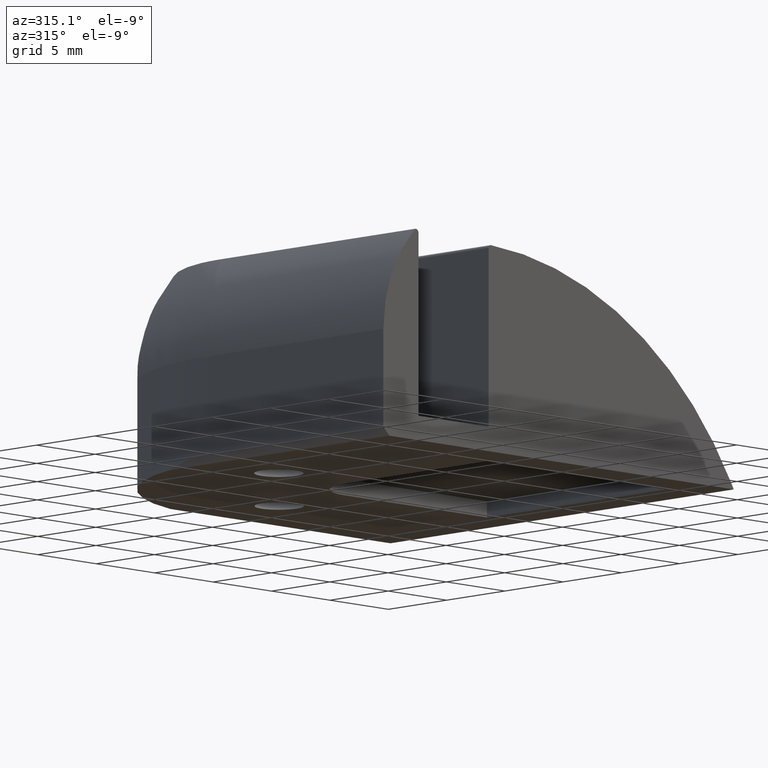
[diagram: clean part render]
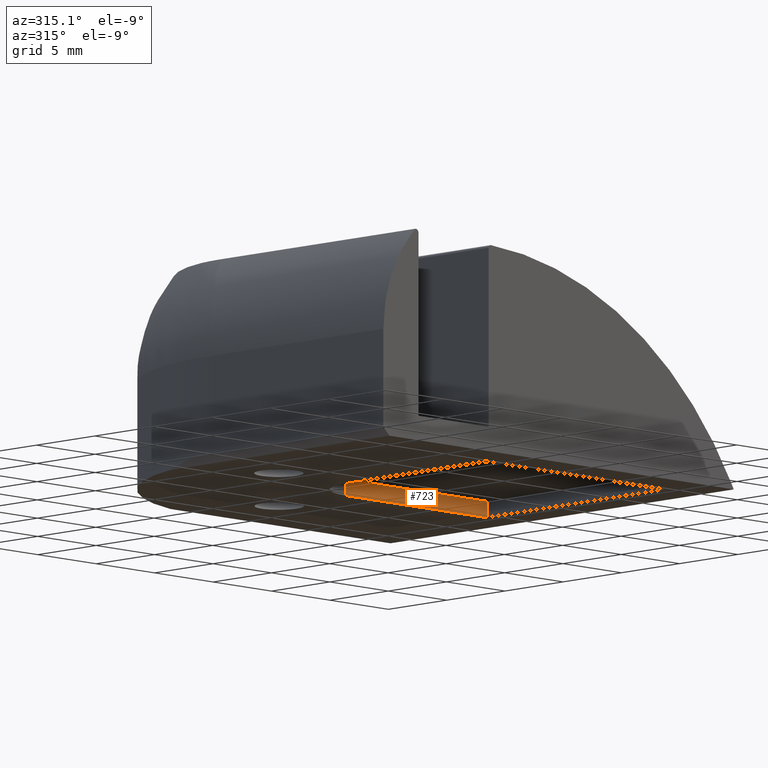
[diagram: same view with one face highlighted and labeled with its STEP entity id]
A machine part, auxiliary view. The second image highlights one B-rep face of the part: STEP entity #723.
In plain terms, the highlighted planar face has unit normal (0, -1, 0).
Its self-contained STEP definition (entity closure, byte-faithful):
#560=CARTESIAN_POINT('',(-14.979079826508496,18.603077244039696,-0.303077244039970));
#561=VERTEX_POINT('',#560);
#562=CARTESIAN_POINT('',(-2.879079826508473,18.603077244039696,-0.303077244039970));
#563=VERTEX_POINT('',#562);
#564=CARTESIAN_POINT('',(-14.979079826508496,18.603077244039696,-0.303077244039970));
#565=DIRECTION('',(1.0,0.0,0.0));
#566=VECTOR('',#565,12.100000000000023);
#567=LINE('',#564,#566);
#568=EDGE_CURVE('',#561,#563,#567,.T.);
#682=CARTESIAN_POINT('',(-14.979079826508496,18.603077244039696,0.696922755960030));
#683=VERTEX_POINT('',#682);
#684=CARTESIAN_POINT('',(-14.979079826508496,18.603077244039696,-0.303077244039970));
#685=DIRECTION('',(0.0,0.0,1.0));
#686=VECTOR('',#685,1.0);
#687=LINE('',#684,#686);
#688=EDGE_CURVE('',#561,#683,#687,.T.);
#700=CARTESIAN_POINT('',(-14.979079826508496,18.603077244039696,-0.303077244039970));
#701=DIRECTION('',(0.0,-1.0,0.0));
#702=DIRECTION('',(1.0,0.0,0.0));
#703=AXIS2_PLACEMENT_3D('',#700,#701,#702);
#704=PLANE('',#703);
#705=ORIENTED_EDGE('',*,*,#688,.F.);
#706=ORIENTED_EDGE('',*,*,#568,.T.);
#707=CARTESIAN_POINT('',(-2.879079826508473,18.603077244039696,0.696922755960030));
#708=VERTEX_POINT('',#707);
#709=CARTESIAN_POINT('',(-2.879079826508473,18.603077244039696,-0.303077244039970));
#710=DIRECTION('',(0.0,0.0,1.0));
#711=VECTOR('',#710,1.0);
#712=LINE('',#709,#711);
#713=EDGE_CURVE('',#563,#708,#712,.T.);
#714=ORIENTED_EDGE('',*,*,#713,.T.);
#715=CARTESIAN_POINT('',(-14.979079826508496,18.603077244039696,0.696922755960030));
#716=DIRECTION('',(1.0,0.0,0.0));
#717=VECTOR('',#716,12.100000000000023);
#718=LINE('',#715,#717);
#719=EDGE_CURVE('',#683,#708,#718,.T.);
#720=ORIENTED_EDGE('',*,*,#719,.F.);
#721=EDGE_LOOP('',(#705,#706,#714,#720));
#722=FACE_OUTER_BOUND('',#721,.T.);
#723=ADVANCED_FACE('',(#722),#704,.T.);